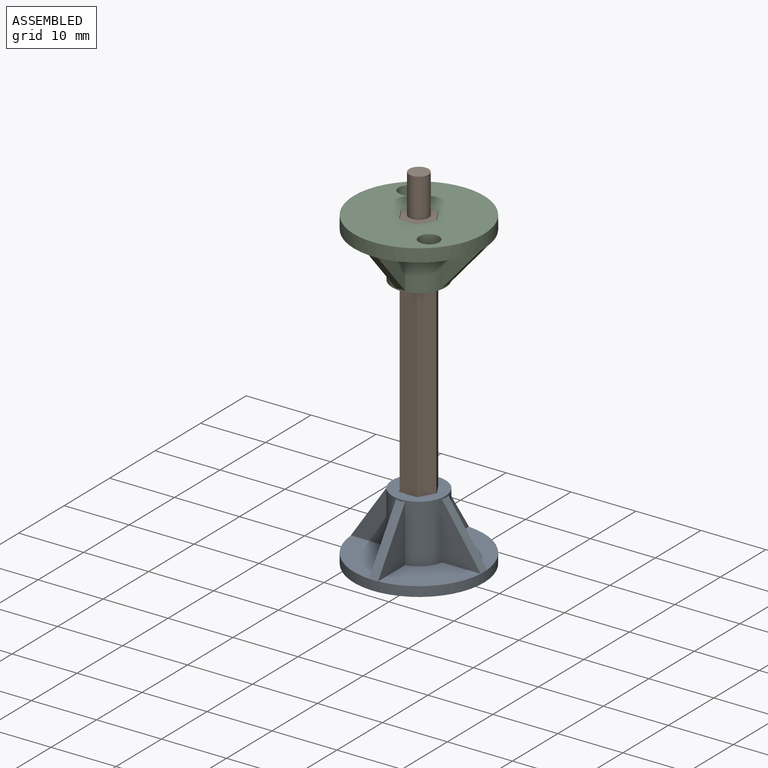
[diagram: assembled view]
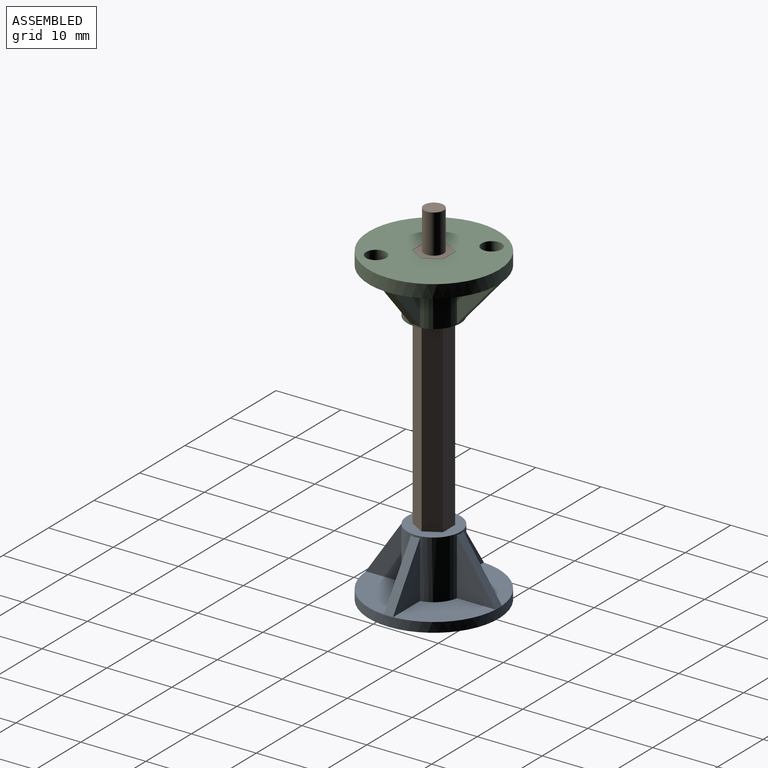
[diagram: assembled view, second angle]
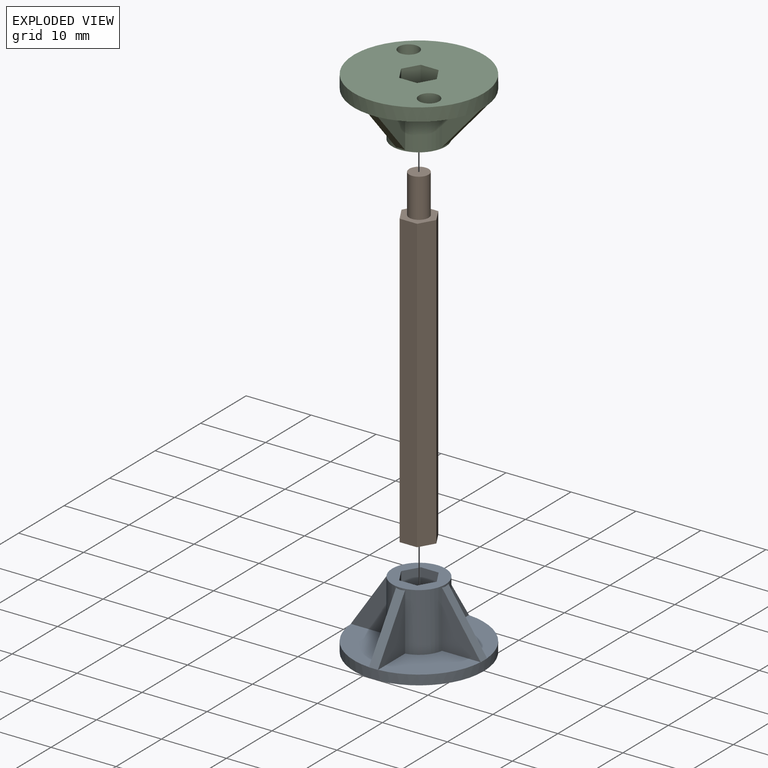
[diagram: exploded view]
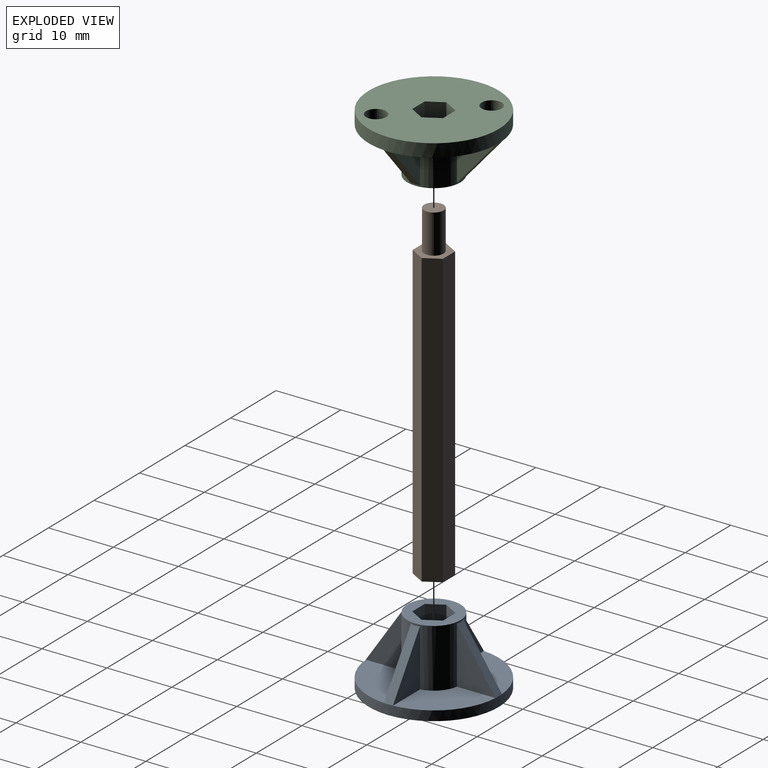
[diagram: exploded view, second angle]
ASSEMBLY  parts=3 mates=6
PART A: 36 faces, bbox 20x20x10.5 mm
  f0: plane 9.28x9.28mm, normal (0,0,-1), area 57.1mm2, adj f4,f11,f20,f22
  f1: plane 0.7x0.02mm, normal (0,0,1), area 0mm2, adj f2,f4,f20
  f2: plane 8.79x5.96mm, normal (0,0.83,-0.56), area 14.8mm2, adj f1,f3,f4,f5,f22
  f3: plane 0.7x0.02mm, normal (0,0,1), area 0mm2, adj f2,f5,f20
  f4: plane 8.79x5.96mm, normal (-1,0,0), area 26.2mm2, adj f0,f1,f2,f22
  f5: plane 8.79x5.96mm, normal (1,0,0), area 26.2mm2, adj f2,f3,f18,f22
  f6: plane 9.28x9.28mm, normal (0,0,-1), area 57.1mm2, adj f10,f17,f20,f22
  f7: plane 0.7x0.02mm, normal (0,0,1), area 0mm2, adj f8,f10,f20
  f8: plane 8.79x5.96mm, normal (-0.83,0,-0.56), area 14.8mm2, adj f7,f9,f10,f11,f22
  f9: plane 0.7x0.02mm, normal (0,0,1), area 0mm2, adj f8,f11,f20
  f10: plane 8.79x5.96mm, normal (0,-1,0), area 26.2mm2, adj f6,f7,f8,f22
  f11: plane 8.79x5.96mm, normal (0,1,0), area 26.2mm2, adj f0,f8,f9,f22
  f12: plane 9.28x9.28mm, normal (0,0,-1), area 57.1mm2, adj f16,f20,f22,f33
  f13: plane 0.7x0.02mm, normal (0,0,1), area 0mm2, adj f14,f16,f20
  f14: plane 8.79x5.96mm, normal (0,-0.83,-0.56), area 14.8mm2, adj f13,f15,f16,f17,f22
  f15: plane 0.7x0.02mm, normal (0,0,1), area 0mm2, adj f14,f17,f20
  f16: plane 8.79x5.96mm, normal (1,0,0), area 26.2mm2, adj f12,f13,f14,f22
  f17: plane 8.79x5.96mm, normal (-1,0,0), area 26.2mm2, adj f6,f14,f15,f22
  f18: plane 9.28x9.28mm, normal (0,0,-1), area 57.1mm2, adj f5,f20,f22,f34
  f19: plane 5.49x4.75mm, normal (0,0,-1), area 12mm2, adj f23,f24,f25,f26,f27,f28,f29
  f20: cylinder r=10mm len=20mm, axis (0,0,-1), area 94.2mm2, adj f0,f1,f3,f6,f7,f9,f12,f13
  f21: plane 20x20mm, normal (0,0,1), area 306.6mm2, adj f20,f23
  f22: cylinder r=4.1mm len=9mm, axis (0,0,1), area 182.7mm2, adj f0,f2,f4,f5,f6,f8,f10,f11
  f23: cylinder r=1.55mm len=3.5mm, axis (0,0,-1), area 34.1mm2, adj f19,f21
  f24: plane 7x2.38mm, normal (-0.87,0.5,0), area 19.2mm2, adj f19,f25,f29,f30
  f25: plane 7x2.38mm, normal (-0.87,-0.5,0), area 19.2mm2, adj f19,f24,f26,f30
  f26: plane 7x2.74mm, normal (0,-1,0), area 19.2mm2, adj f19,f25,f27,f30
  f27: plane 7x2.38mm, normal (0.87,-0.5,0), area 19.2mm2, adj f19,f26,f28,f30
  f28: plane 7x2.38mm, normal (0.87,0.5,0), area 19.2mm2, adj f19,f27,f29,f30
  f29: plane 7x2.74mm, normal (0,1,0), area 19.2mm2, adj f19,f24,f28,f30
  f30: plane 8.2x8.2mm, normal (0,0,-1), area 33.3mm2, adj f22,f24,f25,f26,f27,f28,f29
  f31: plane 0.7x0.02mm, normal (0,0,1), area 0mm2, adj f20,f32,f34
  f32: plane 8.79x5.96mm, normal (0.83,0,-0.56), area 14.8mm2, adj f22,f31,f33,f34,f35
  f33: plane 8.79x5.96mm, normal (0,-1,0), area 26.2mm2, adj f12,f22,f32,f35
  f34: plane 8.79x5.96mm, normal (0,1,0), area 26.2mm2, adj f18,f22,f31,f32
  f35: plane 0.7x0.02mm, normal (0,0,1), area 0mm2, adj f20,f32,f33
PART B: 12 faces, bbox 5.4x4.7x51 mm
  f0: plane 45x2.68mm, normal (0,-1,0), area 120.8mm2, adj f1,f5,f6,f7
  f1: plane 45x2.33mm, normal (0.87,-0.5,0), area 120.8mm2, adj f0,f2,f6,f7
  f2: plane 45x2.33mm, normal (0.87,0.5,0), area 120.8mm2, adj f1,f3,f6,f7
  f3: plane 45x2.68mm, normal (0,1,0), area 120.8mm2, adj f2,f4,f6,f7
  f4: plane 45x2.33mm, normal (-0.87,0.5,0), area 120.8mm2, adj f3,f5,f6,f7
  f5: plane 45x2.33mm, normal (-0.87,-0.5,0), area 120.8mm2, adj f0,f4,f6,f7
  f6: plane 5.37x4.65mm, normal (0,0,1), area 11.7mm2, adj f0,f1,f2,f3,f4,f5,f8
  f7: plane 5.37x4.65mm, normal (0,0,-1), area 11.7mm2, adj f0,f1,f2,f3,f4,f5,f10
  f8: cylinder r=1.5mm len=6mm, axis (0,0,-1), area 56.5mm2, adj f6,f9
  f9: plane 3x3mm, normal (0,0,1), area 7.1mm2, adj f8
  f10: cylinder r=1.5mm len=9mm, axis (0,0,-1), area 84.8mm2, adj f7,f11
  f11: plane 3x3mm, normal (0,0,-1), area 7.1mm2, adj f10
PART C: 36 faces, bbox 20x9x20 mm
  f0: cylinder r=1.55mm len=3.1mm, axis (0,-1,0), area 19.5mm2, adj f13,f21
  f1: plane 9.28x9.28mm, normal (0,-1,0), area 49.5mm2, adj f5,f19,f22,f33,f35
  f2: plane 0.7x0.02mm, normal (0,1,0), area 0mm2, adj f3,f6,f19
  f3: plane 6.84x5.96mm, normal (0.75,-0.66,0), area 12.6mm2, adj f2,f4,f5,f6,f22
  f4: plane 0.7x0.02mm, normal (0,1,0), area 0mm2, adj f3,f5,f19
  f5: plane 6.84x5.96mm, normal (0,0,1), area 20.4mm2, adj f1,f3,f4,f22
  f6: plane 6.84x5.96mm, normal (0,0,-1), area 20.4mm2, adj f2,f3,f7,f22
  f7: plane 9.28x9.28mm, normal (0,-1,0), area 57.1mm2, adj f6,f11,f19,f22
  f8: plane 0.7x0.02mm, normal (0,1,0), area 0mm2, adj f9,f12,f19
  f9: plane 6.84x5.96mm, normal (0,-0.66,-0.75), area 12.6mm2, adj f8,f10,f11,f12,f22
  f10: plane 0.7x0.02mm, normal (0,1,0), area 0mm2, adj f9,f11,f19
  f11: plane 6.84x5.96mm, normal (1,0,0), area 20.4mm2, adj f7,f9,f10,f22
  f12: plane 6.84x5.96mm, normal (-1,0,0), area 20.4mm2, adj f8,f9,f13,f22
  f13: plane 9.28x9.28mm, normal (0,-1,0), area 49.5mm2, adj f0,f12,f17,f19,f22
  f14: plane 0.7x0.02mm, normal (0,1,0), area 0mm2, adj f15,f18,f19
  f15: plane 6.84x5.96mm, normal (-0.75,-0.66,0), area 12.6mm2, adj f14,f16,f17,f18,f22
  f16: plane 0.7x0.02mm, normal (0,1,0), area 0mm2, adj f15,f17,f19
  f17: plane 6.84x5.96mm, normal (0,0,-1), area 20.4mm2, adj f13,f15,f16,f22
  f18: plane 6.84x5.96mm, normal (0,0,1), area 20.4mm2, adj f14,f15,f20,f22
  f19: cylinder r=10mm len=20mm, axis (0,1,0), area 125.7mm2, adj f1,f2,f4,f7,f8,f10,f13,f14
  f20: plane 9.28x9.28mm, normal (0,-1,0), area 57.1mm2, adj f18,f19,f22,f34
  f21: plane 20x20mm, normal (0,1,0), area 279.5mm2, adj f0,f19,f24,f25,f26,f27,f28,f29
  f22: cylinder r=4.1mm len=8.2mm, axis (0,1,0), area 142.1mm2, adj f1,f3,f5,f6,f7,f9,f11,f12
  f23: plane 8.2x8.2mm, normal (0,-1,0), area 33.3mm2, adj f22,f24,f25,f26,f27,f28,f29
  f24: plane 9x2.38mm, normal (0.87,0,0.5), area 24.7mm2, adj f21,f23,f25,f29
  f25: plane 9x2.74mm, normal (0,0,1), area 24.7mm2, adj f21,f23,f24,f26
  f26: plane 9x2.38mm, normal (-0.87,0,0.5), area 24.7mm2, adj f21,f23,f25,f27
  f27: plane 9x2.38mm, normal (-0.87,0,-0.5), area 24.7mm2, adj f21,f23,f26,f28
  f28: plane 9x2.74mm, normal (0,0,-1), area 24.7mm2, adj f21,f23,f27,f29
  f29: plane 9x2.38mm, normal (0.87,0,-0.5), area 24.7mm2, adj f21,f23,f24,f28
  f30: plane 0.7x0.02mm, normal (0,1,0), area 0mm2, adj f19,f32,f33
  f31: plane 0.7x0.02mm, normal (0,1,0), area 0mm2, adj f19,f32,f34
  f32: plane 6.84x5.96mm, normal (0,-0.66,0.75), area 12.6mm2, adj f22,f30,f31,f33,f34
  f33: plane 6.84x5.96mm, normal (1,0,0), area 20.4mm2, adj f1,f22,f30,f32
  f34: plane 6.84x5.96mm, normal (-1,0,0), area 20.4mm2, adj f20,f22,f31,f32
  f35: cylinder r=1.55mm len=3.1mm, axis (0,-1,0), area 19.5mm2, adj f1,f21
PLACE A rot(axis=(1,0,0),180deg) t=(-17.19,38.3,23.53)mm
PLACE B rot(axis=(0,0,-1),120deg) t=(-17.19,38.3,25.53)mm
PLACE C rot(axis=(0,-0.71,-0.71),180deg) t=(-17.19,38.3,70.53)mm
MATE parallel B.f5 <-> C.f25  axis (0,1,0) through (-17.19,40.62,48.03)mm
MATE planar A.f19 <-> B.f7  axis (0,0,1) through (-17.19,40.67,25.53)mm
MATE planar C.f22 <-> B.f6  axis (0,0,1) through (-17.19,38.3,70.53)mm
MATE parallel A.f24 <-> B.f1  axis (-0.87,-0.5,0) through (-15.14,39.48,29.03)mm
MATE cylindrical C.f19 <-> B.f8  axis (0,0,1) through (-17.19,38.3,69.53)mm
MATE cylindrical A.f23 <-> B.f10  axis (0,0,1) through (-17.19,38.3,23.78)mm
